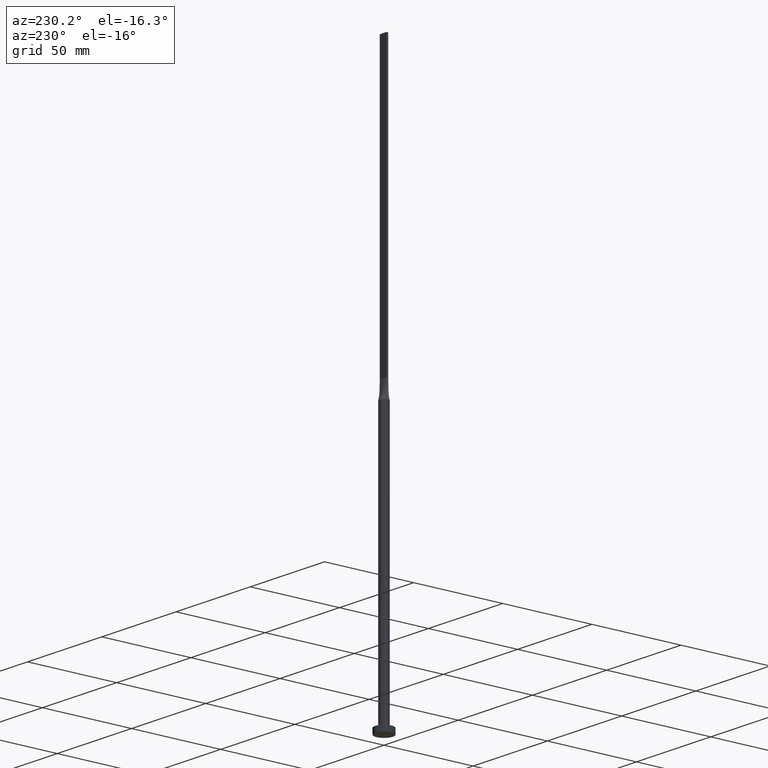
[diagram: clean part render]
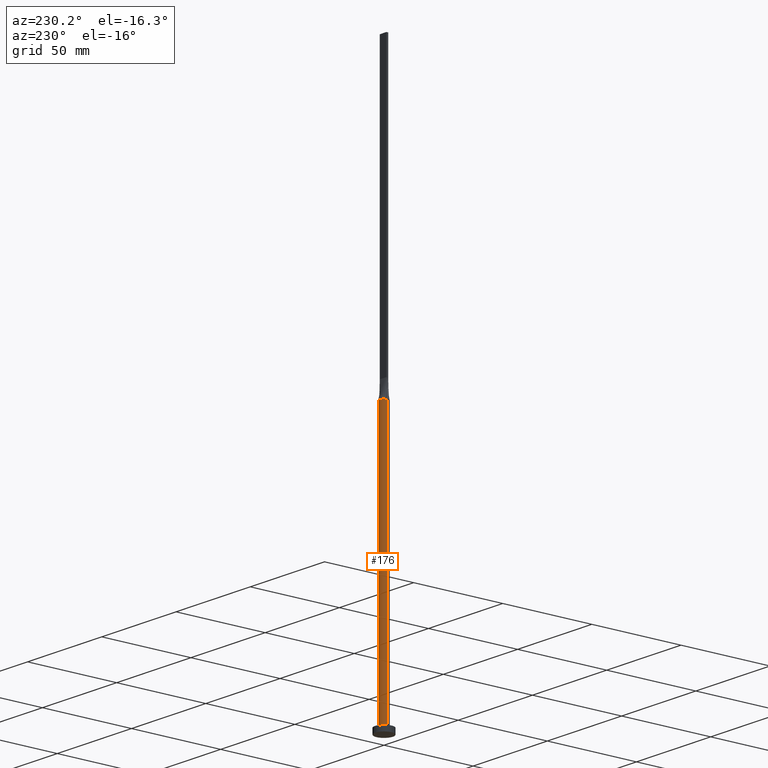
[diagram: same view with one face highlighted and labeled with its STEP entity id]
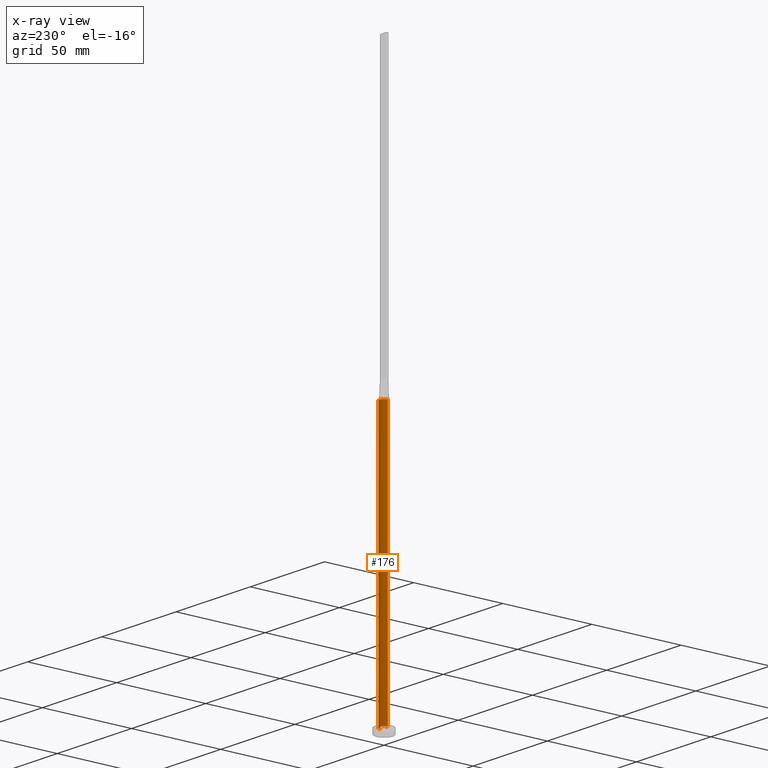
[diagram: x-ray of the same camera — body ghosted, the highlighted face saturated]
A machine part, auxiliary view. The second image highlights one B-rep face of the part: STEP entity #176.
The next image is the same camera in x-ray: the body ghosted, the highlighted face saturated — about 0% of this face is hidden behind the body in this view.
In plain terms, the highlighted cylindrical surface (edge-blend (fillet) strip) has radius 2.5 mm, axis along (-0, -0, -1).
Its self-contained STEP definition (entity closure, byte-faithful):
#5 = AXIS2_PLACEMENT_3D ( 'NONE', #305, #261, #331 ) ;
#39 = ORIENTED_EDGE ( 'NONE', *, *, #147, .F. ) ;
#64 = DIRECTION ( 'NONE',  ( -0.000000000000000000, -0.000000000000000000, -1.000000000000000000 ) ) ;
#78 = ORIENTED_EDGE ( 'NONE', *, *, #93, .F. ) ;
#82 = VECTOR ( 'NONE', #427, 1000.000000000000000 ) ;
#83 = CARTESIAN_POINT ( 'NONE',  ( 0.000000000000000000, 0.000000000000000000, 150.0000000000000000 ) ) ;
#93 = EDGE_CURVE ( 'NONE', #514, #301, #248, .T. ) ;
#96 = EDGE_CURVE ( 'NONE', #514, #244, #294, .T. ) ;
#108 = CARTESIAN_POINT ( 'NONE',  ( -2.396350003401058082, 0.7408555563113466969, 150.0000000000000284 ) ) ;
#111 = CARTESIAN_POINT ( 'NONE',  ( -0.6674771052374470770, 2.430579781493059421, 149.9999999999999716 ) ) ;
#113 = EDGE_CURVE ( 'NONE', #244, #496, #115, .T. ) ;
#115 = CIRCLE ( 'NONE', #5, 2.500000000000000000 ) ;
#136 = DIRECTION ( 'NONE',  ( -1.000000000000000000, 0.000000000000000000, 0.000000000000000000 ) ) ;
#145 = B_SPLINE_CURVE_WITH_KNOTS ( 'NONE', 3,
 ( #529, #433, #369, #330, #519, #480, #304, #482, #566, #206, #111, #171, #558, #373, #161, #555, #108, #156 ),
 .UNSPECIFIED., .F., .F.,
 ( 4, 2, 2, 2, 2, 2, 2, 2, 4 ),
 ( 0.000000000000000000, 0.1249999999999999722, 0.2500000000000000000, 0.3750000000000000000, 0.5000000000000001110, 0.6250000000000001110, 0.7500000000000000000, 0.8750000000000000000, 1.000000000000000000 ),
 .UNSPECIFIED. ) ;
#147 = EDGE_CURVE ( 'NONE', #266, #496, #217, .T. ) ;
#156 = CARTESIAN_POINT ( 'NONE',  ( -2.440694335308545071, 0.5423767520433731004, 150.0000000000000000 ) ) ;
#161 = CARTESIAN_POINT ( 'NONE',  ( -2.093723281432891437, 1.388001797188529451, 150.0000000000000000 ) ) ;
#171 = CARTESIAN_POINT ( 'NONE',  ( -1.260416918790968843, 2.182794756967428196, 149.9999999999999716 ) ) ;
#176 = ADVANCED_FACE ( 'NONE', ( #534 ), #540, .T. ) ;
#199 = ORIENTED_EDGE ( 'NONE', *, *, #499, .F. ) ;
#206 = CARTESIAN_POINT ( 'NONE',  ( -0.3342381693191151526, 2.499999999999999556, 150.0000000000000284 ) ) ;
#217 = LINE ( 'NONE', #388, #523 ) ;
#244 = VERTEX_POINT ( 'NONE', #393 ) ;
#248 = CIRCLE ( 'NONE', #258, 2.500000000000000000 ) ;
#252 = CARTESIAN_POINT ( 'NONE',  ( 2.500000000000000000, 3.061616997868383141E-16, 150.0000000000000000 ) ) ;
#256 = DIRECTION ( 'NONE',  ( 1.000000000000000000, 0.000000000000000000, 0.000000000000000000 ) ) ;
#257 = DIRECTION ( 'NONE',  ( 0.000000000000000000, 0.000000000000000000, 1.000000000000000000 ) ) ;
#258 = AXIS2_PLACEMENT_3D ( 'NONE', #470, #257, #434 ) ;
#261 = DIRECTION ( 'NONE',  ( 0.000000000000000000, 0.000000000000000000, 1.000000000000000000 ) ) ;
#266 = VERTEX_POINT ( 'NONE', #271 ) ;
#271 = CARTESIAN_POINT ( 'NONE',  ( -2.499645589935823420, -1.700711608024726496E-15, 150.0000000000000000 ) ) ;
#275 = ORIENTED_EDGE ( 'NONE', *, *, #401, .F. ) ;
#280 = EDGE_LOOP ( 'NONE', ( #78, #462, #329, #39, #199, #275 ) ) ;
#294 = LINE ( 'NONE', #252, #82 ) ;
#301 = VERTEX_POINT ( 'NONE', #316 ) ;
#304 = CARTESIAN_POINT ( 'NONE',  ( 1.260416918790968843, 2.182794756967427752, 149.9999999999999716 ) ) ;
#305 = CARTESIAN_POINT ( 'NONE',  ( 0.000000000000000000, 0.000000000000000000, 3.000000000000000000 ) ) ;
#316 = CARTESIAN_POINT ( 'NONE',  ( 2.440676307083422980, 0.5423728264510006003, 150.0000000000000000 ) ) ;
#329 = ORIENTED_EDGE ( 'NONE', *, *, #113, .T. ) ;
#330 = CARTESIAN_POINT ( 'NONE',  ( 2.093723281432890104, 1.388001797188529007, 149.9999999999999716 ) ) ;
#331 = DIRECTION ( 'NONE',  ( 1.000000000000000000, 0.000000000000000000, 0.000000000000000000 ) ) ;
#336 = CARTESIAN_POINT ( 'NONE',  ( -2.440694335308545071, 0.5423767520433731004, 150.0000000000000000 ) ) ;
#340 = CARTESIAN_POINT ( 'NONE',  ( 0.000000000000000000, 0.000000000000000000, 150.0000000000000000 ) ) ;
#369 = CARTESIAN_POINT ( 'NONE',  ( 2.323660390030918954, 0.9543733860570833283, 150.0000000000000568 ) ) ;
#373 = CARTESIAN_POINT ( 'NONE',  ( -1.935644909179609297, 1.608159499248285718, 149.9999999999999716 ) ) ;
#382 = CIRCLE ( 'NONE', #505, 2.500000000000000000 ) ;
#388 = CARTESIAN_POINT ( 'NONE',  ( -2.500000000000000000, 0.000000000000000000, 150.0000000000000000 ) ) ;
#392 = CARTESIAN_POINT ( 'NONE',  ( 2.499645589935823420, 5.999196936655281332E-16, 150.0000000000000000 ) ) ;
#393 = CARTESIAN_POINT ( 'NONE',  ( 2.500000000000000000, 3.061616997868383141E-16, 3.000000000000000000 ) ) ;
#401 = EDGE_CURVE ( 'NONE', #301, #420, #145, .T. ) ;
#420 = VERTEX_POINT ( 'NONE', #336 ) ;
#426 = AXIS2_PLACEMENT_3D ( 'NONE', #83, #493, #136 ) ;
#427 = DIRECTION ( 'NONE',  ( -0.000000000000000000, -0.000000000000000000, -1.000000000000000000 ) ) ;
#433 = CARTESIAN_POINT ( 'NONE',  ( 2.396350003401058526, 0.7408555563113465858, 150.0000000000000000 ) ) ;
#434 = DIRECTION ( 'NONE',  ( 1.000000000000000000, 0.000000000000000000, 0.000000000000000000 ) ) ;
#462 = ORIENTED_EDGE ( 'NONE', *, *, #96, .T. ) ;
#470 = CARTESIAN_POINT ( 'NONE',  ( 0.000000000000000000, 0.000000000000000000, 150.0000000000000000 ) ) ;
#480 = CARTESIAN_POINT ( 'NONE',  ( 1.519400572660313031, 2.006070808634367708, 149.9999999999999716 ) ) ;
#482 = CARTESIAN_POINT ( 'NONE',  ( 0.6674771052374470770, 2.430579781493058977, 149.9999999999999432 ) ) ;
#493 = DIRECTION ( 'NONE',  ( -0.000000000000000000, -0.000000000000000000, -1.000000000000000000 ) ) ;
#496 = VERTEX_POINT ( 'NONE', #564 ) ;
#499 = EDGE_CURVE ( 'NONE', #420, #266, #382, .T. ) ;
#505 = AXIS2_PLACEMENT_3D ( 'NONE', #340, #527, #256 ) ;
#514 = VERTEX_POINT ( 'NONE', #392 ) ;
#519 = CARTESIAN_POINT ( 'NONE',  ( 1.935644909179608186, 1.608159499248285051, 149.9999999999999432 ) ) ;
#523 = VECTOR ( 'NONE', #64, 1000.000000000000000 ) ;
#527 = DIRECTION ( 'NONE',  ( 0.000000000000000000, 0.000000000000000000, 1.000000000000000000 ) ) ;
#529 = CARTESIAN_POINT ( 'NONE',  ( 2.440676307083422980, 0.5423728264510006003, 150.0000000000000000 ) ) ;
#534 = FACE_OUTER_BOUND ( 'NONE', #280, .T. ) ;
#540 = CYLINDRICAL_SURFACE ( 'NONE', #426, 2.500000000000000000 ) ;
#555 = CARTESIAN_POINT ( 'NONE',  ( -2.323660390030918510, 0.9543733860570832173, 150.0000000000000000 ) ) ;
#558 = CARTESIAN_POINT ( 'NONE',  ( -1.519400572660313253, 2.006070808634367264, 150.0000000000000000 ) ) ;
#564 = CARTESIAN_POINT ( 'NONE',  ( -2.500000000000000000, 0.000000000000000000, 3.000000000000000000 ) ) ;
#566 = CARTESIAN_POINT ( 'NONE',  ( 0.3342381693191150416, 2.499999999999999556, 150.0000000000000000 ) ) ;